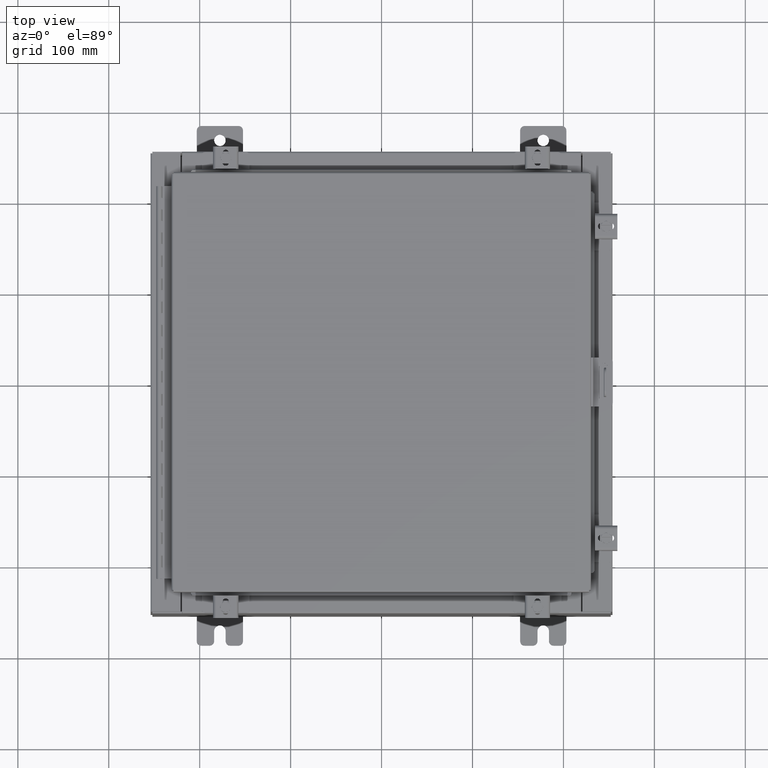
[diagram: clean part render]
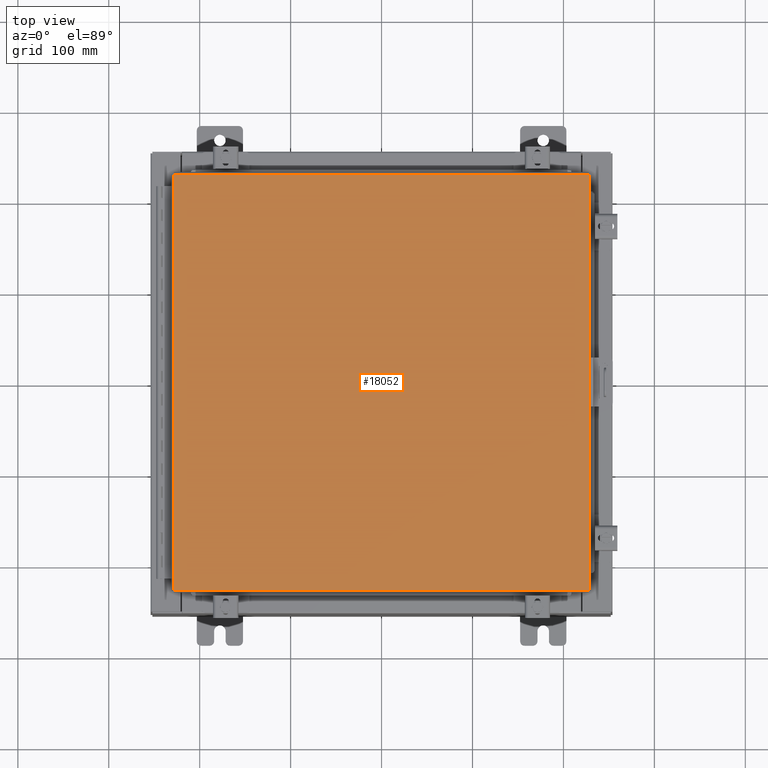
[diagram: same view with one face highlighted and labeled with its STEP entity id]
A machine part, top view. The second image highlights one B-rep face of the part: STEP entity #18052.
In plain terms, the highlighted planar face has unit normal (0, 0, -1).
Its self-contained STEP definition (entity closure, byte-faithful):
#2358 = CARTESIAN_POINT ( 'NONE',  ( 8.990300000000001300, 9.006299999999999500, -2.048885995248197400E-016 ) ) ;
#2394 = VERTEX_POINT ( 'NONE', #18112 ) ;
#2629 = VERTEX_POINT ( 'NONE', #19091 ) ;
#3485 = CARTESIAN_POINT ( 'NONE',  ( 8.990299999999999500, -9.006299999999999500, -7.512581982576723400E-016 ) ) ;
#4222 = CARTESIAN_POINT ( 'NONE',  ( 0.0000000000000000000, 0.0000000000000000000, 0.0000000000000000000 ) ) ;
#4278 = VECTOR ( 'NONE', #25994, 39.37007874015748100 ) ;
#5048 = DIRECTION ( 'NONE',  ( 0.0000000000000000000, -1.000000000000000000, 0.0000000000000000000 ) ) ;
#6498 = DIRECTION ( 'NONE',  ( 0.0000000000000000000, 0.0000000000000000000, -1.000000000000000000 ) ) ;
#8225 = EDGE_CURVE ( 'NONE', #2394, #28287, #10354, .T. ) ;
#9712 = CARTESIAN_POINT ( 'NONE',  ( 8.990299999999999500, -9.006299999999999500, -7.512581982576723400E-016 ) ) ;
#10108 = CARTESIAN_POINT ( 'NONE',  ( -8.990299999999999500, -9.006299999999999500, -2.048885995248197400E-016 ) ) ;
#10354 = LINE ( 'NONE', #10108, #4278 ) ;
#10509 = ORIENTED_EDGE ( 'NONE', *, *, #23271, .T. ) ;
#10668 = CARTESIAN_POINT ( 'NONE',  ( 8.990300000000001300, 9.006299999999999500, -2.048885995248197400E-016 ) ) ;
#11957 = FACE_OUTER_BOUND ( 'NONE', #25856, .T. ) ;
#12293 = VECTOR ( 'NONE', #5048, 39.37007874015748100 ) ;
#12783 = ORIENTED_EDGE ( 'NONE', *, *, #8225, .T. ) ;
#12823 = EDGE_CURVE ( 'NONE', #2629, #2394, #18309, .T. ) ;
#14091 = LINE ( 'NONE', #9712, #20126 ) ;
#15602 = VECTOR ( 'NONE', #22076, 39.37007874015748100 ) ;
#17102 = ORIENTED_EDGE ( 'NONE', *, *, #24823, .T. ) ;
#18052 = ADVANCED_FACE ( 'NONE', ( #11957 ), #20118, .F. ) ;
#18112 = CARTESIAN_POINT ( 'NONE',  ( -8.990299999999999500, -9.006299999999999500, -2.048885995248197400E-016 ) ) ;
#18309 = LINE ( 'NONE', #23226, #12293 ) ;
#19091 = CARTESIAN_POINT ( 'NONE',  ( -8.990299999999997700, 9.006299999999999500, -2.048885995248197400E-016 ) ) ;
#19311 = VERTEX_POINT ( 'NONE', #2358 ) ;
#20059 = ORIENTED_EDGE ( 'NONE', *, *, #12823, .T. ) ;
#20118 = PLANE ( 'NONE',  #26514 ) ;
#20126 = VECTOR ( 'NONE', #21216, 39.37007874015748100 ) ;
#21216 = DIRECTION ( 'NONE',  ( 0.0000000000000000000, 1.000000000000000000, 0.0000000000000000000 ) ) ;
#21659 = LINE ( 'NONE', #10668, #15602 ) ;
#22076 = DIRECTION ( 'NONE',  ( -1.000000000000000000, -0.0000000000000000000, -0.0000000000000000000 ) ) ;
#22412 = DIRECTION ( 'NONE',  ( -1.000000000000000000, 0.0000000000000000000, -0.0000000000000000000 ) ) ;
#23226 = CARTESIAN_POINT ( 'NONE',  ( -8.990299999999997700, 9.006299999999999500, -2.048885995248197400E-016 ) ) ;
#23271 = EDGE_CURVE ( 'NONE', #19311, #2629, #21659, .T. ) ;
#24823 = EDGE_CURVE ( 'NONE', #28287, #19311, #14091, .T. ) ;
#25856 = EDGE_LOOP ( 'NONE', ( #12783, #17102, #10509, #20059 ) ) ;
#25994 = DIRECTION ( 'NONE',  ( 1.000000000000000000, -0.0000000000000000000, -0.0000000000000000000 ) ) ;
#26514 = AXIS2_PLACEMENT_3D ( 'NONE', #4222, #6498, #22412 ) ;
#28287 = VERTEX_POINT ( 'NONE', #3485 ) ;